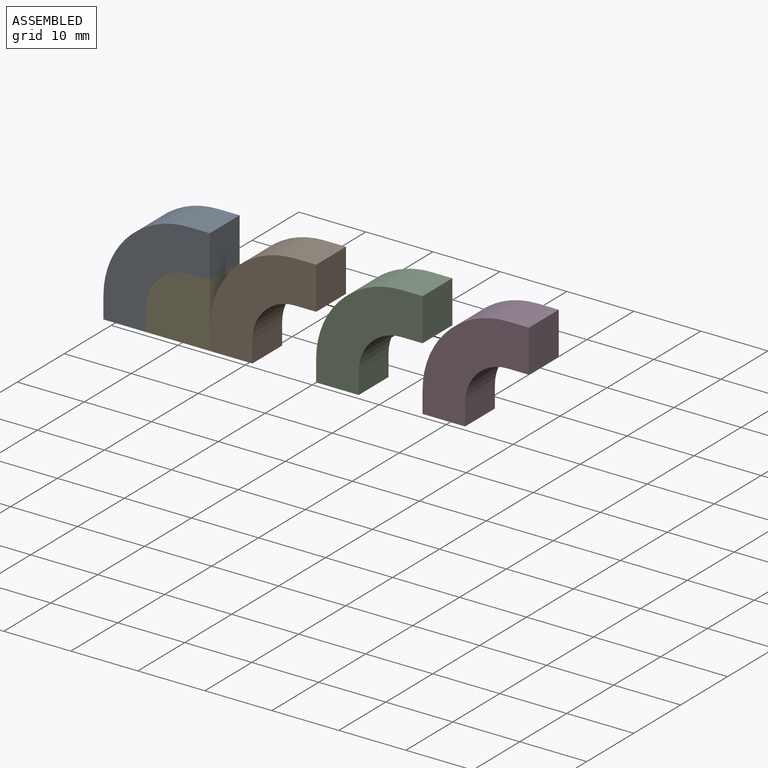
[diagram: assembled view]
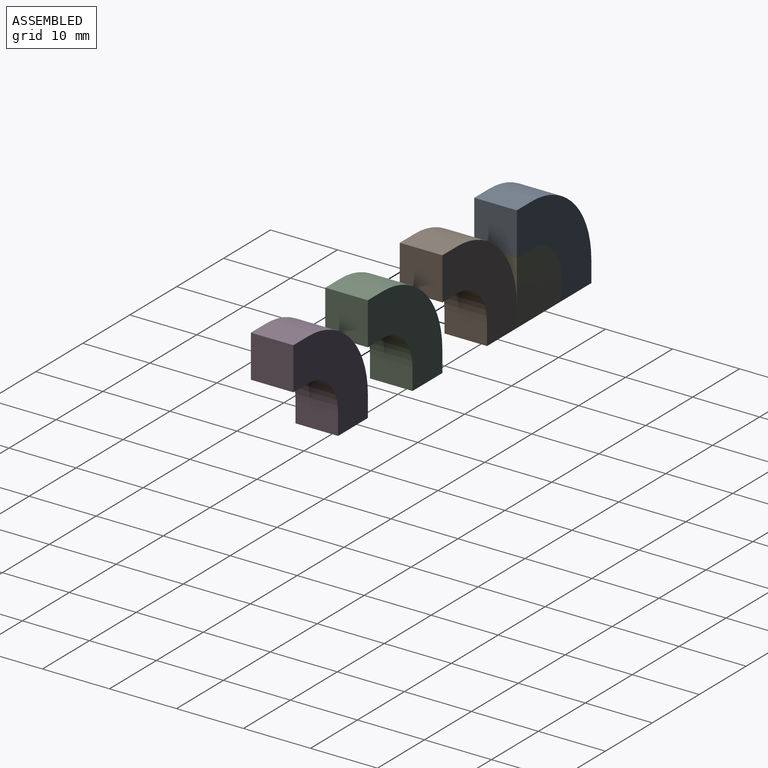
[diagram: assembled view, second angle]
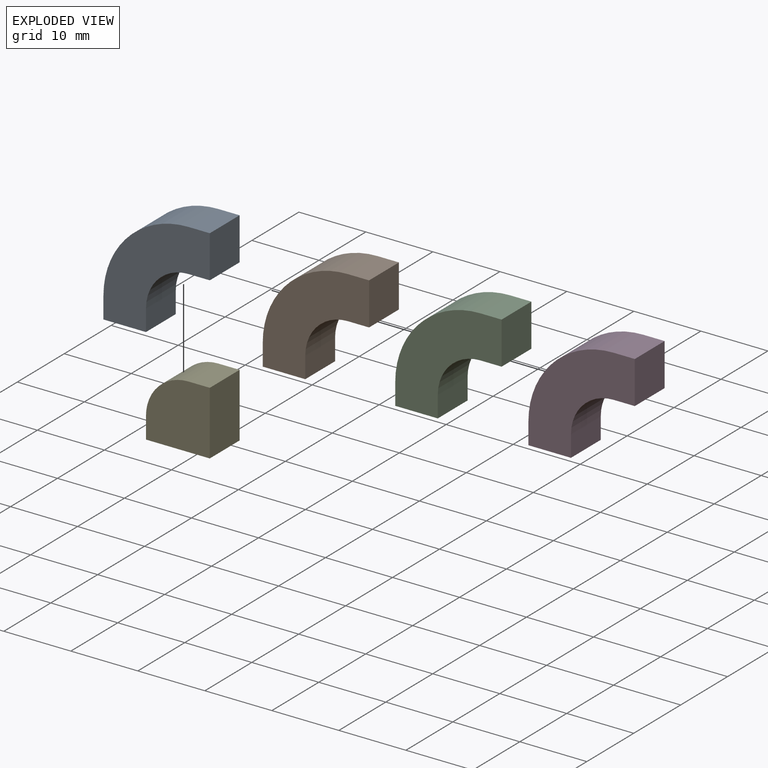
[diagram: exploded view]
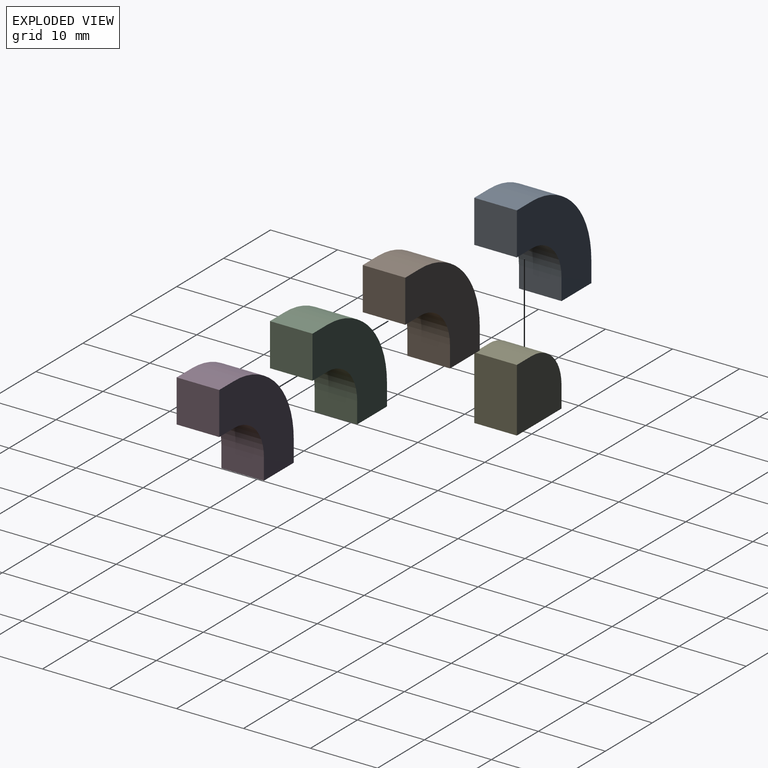
[diagram: exploded view, second angle]
ASSEMBLY  parts=5 mates=2
PART A: 10 faces, bbox 22.5x6.4x10.5 mm
  f0: cylinder r=12.7mm len=17.96mm, axis (0,1,0), area 126.7mm2, adj f1,f7,f8,f9
  f1: plane 6.35x2.25mm, normal (-0.71,0,0.71), area 20.2mm2, adj f0,f2,f8,f9
  f2: plane 6.35x4.49mm, normal (-0.71,0,-0.71), area 40.3mm2, adj f1,f3,f8,f9
  f3: plane 6.35x2.25mm, normal (0.71,0,-0.71), area 20.2mm2, adj f2,f4,f8,f9
  f4: cylinder r=6.35mm len=8.98mm, axis (0,1,0), area 63.3mm2, adj f3,f5,f8,f9
  f5: plane 6.35x2.25mm, normal (-0.71,0,-0.71), area 20.2mm2, adj f4,f6,f8,f9
  f6: plane 6.35x4.49mm, normal (0.71,0,-0.71), area 40.3mm2, adj f5,f7,f8,f9
  f7: plane 6.35x2.25mm, normal (0.71,0,0.71), area 20.2mm2, adj f0,f6,f8,f9
  f8: plane 22.45x10.46mm, normal (0,-1,0), area 135.3mm2, adj f0,f1,f2,f3,f4,f5,f6,f7
  f9: plane 22.45x10.46mm, normal (0,1,0), area 135.3mm2, adj f0,f1,f2,f3,f4,f5,f6,f7
PART B: same geometry as A
PART C: same geometry as A
PART D: same geometry as A
PART E: 7 faces, bbox 13.5x6.4x10.8 mm
  f0: plane 13.47x10.84mm, normal (0,-1,0), area 82.1mm2, adj f1,f2,f4,f5,f6
  f1: plane 6.74x6.74mm, normal (-0.71,0,-0.71), area 60.5mm2, adj f0,f2,f3,f5
  f2: plane 6.74x6.74mm, normal (0.71,0,-0.71), area 60.5mm2, adj f0,f1,f3,f4
  f3: plane 13.47x10.84mm, normal (0,1,0), area 82.1mm2, adj f1,f2,f4,f5,f6
  f4: plane 6.35x2.25mm, normal (0.71,0,0.71), area 20.2mm2, adj f0,f2,f3,f6
  f5: plane 6.35x2.25mm, normal (-0.71,0,0.71), area 20.2mm2, adj f0,f1,f3,f6
  f6: cylinder r=6.35mm len=8.98mm, axis (0,1,0), area 63.3mm2, adj f0,f3,f4,f5
PLACE A rot(axis=(0,-1,0),45deg) t=(0,0,0)mm fixed
PLACE B rot(axis=(0,-1,0),45deg) t=(15.88,0,0)mm
PLACE C rot(axis=(0,-1,0),45deg) t=(31.75,0,0)mm
PLACE D rot(axis=(0,-1,0),45deg) t=(47.62,0,0)mm
PLACE E rot(axis=(0,-1,0),45deg) t=(0,0,0)mm
MATE planar E.f1 <-> A.f2  axis (0,0,-1) through (-1.59,-3.18,-3.17)mm
MATE fastened E.f5 <-> A.f3  axis (-1,0,0) through (-6.35,-3.18,-1.59)mm
